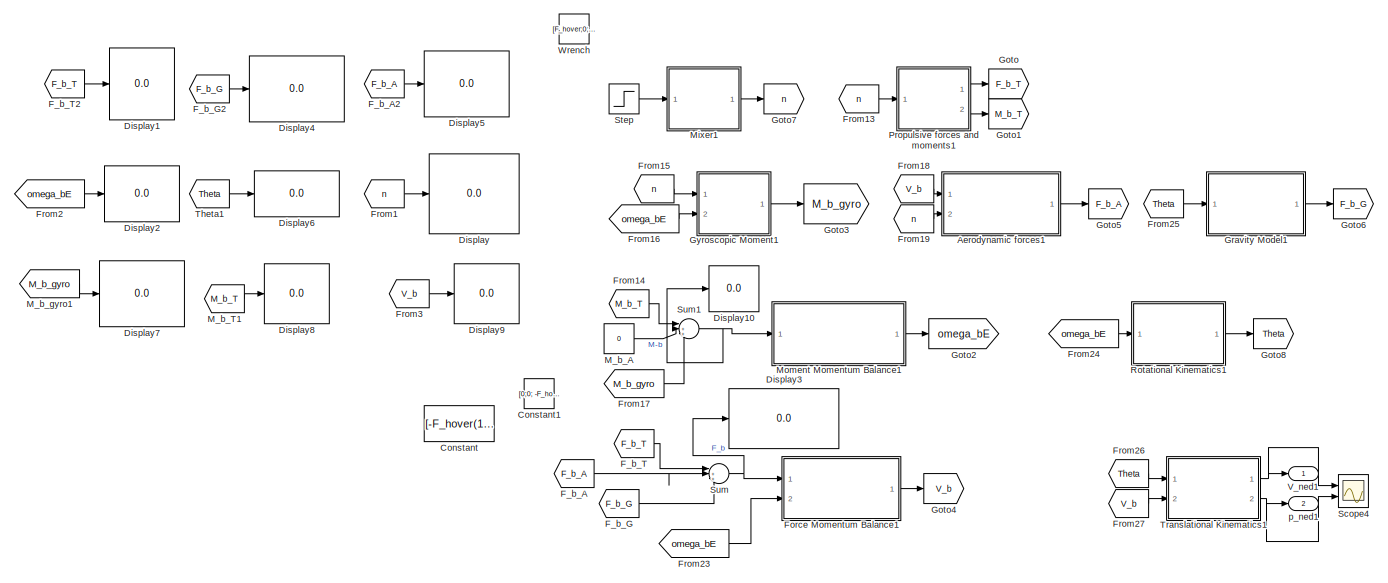
[diagram: root canvas - part 1/2, center side, full height]
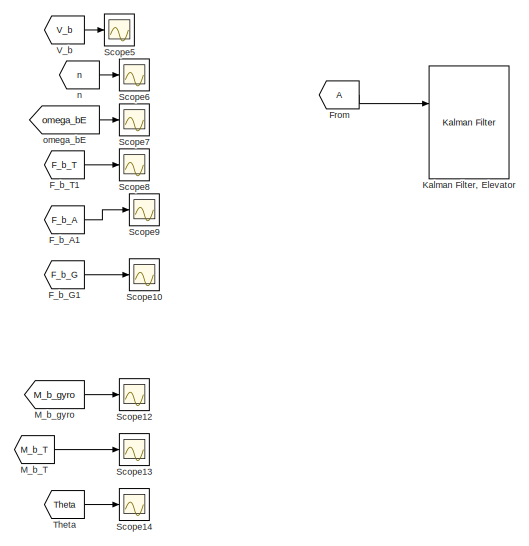
[diagram: root canvas - part 2/2, right side, full height]
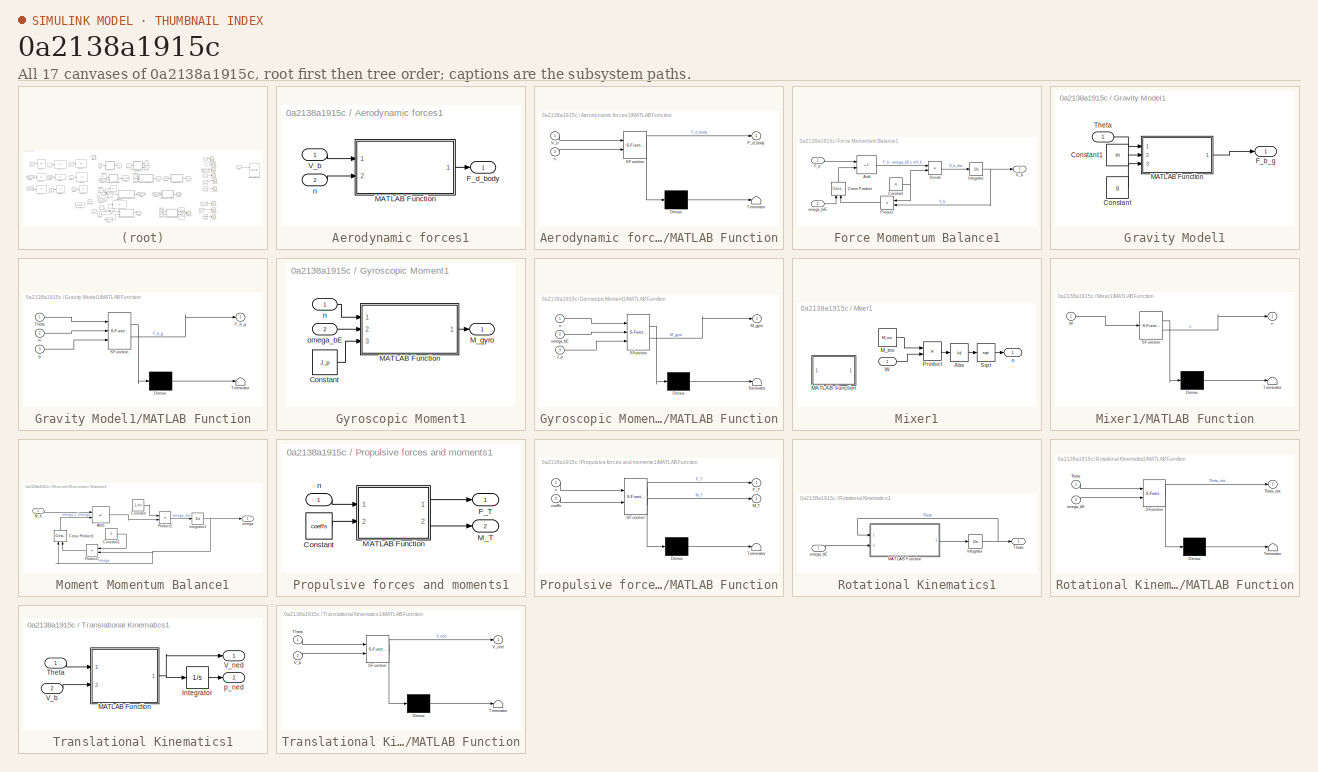
[diagram: thumbnail index - all 17 canvases of the model, root first then tree order]
MODEL slx_0a2138a1915c
KIND model
CONFIG AbsTol = auto
CONFIG EnableMultiTasking = off
CONFIG FixedStep = auto
CONFIG MaxStep = auto
CONFIG MinStep = auto
CONFIG RelTol = 1e-3
CONFIG SampleTimeConstraint = Unconstrained
CONFIG SolverName = VariableStepAuto
CONFIG StartTime = 0.0
CONFIG StopTime = 1
BLOCK [SubSystem] Aerodynamic forces1
  Ports = [2, 1]
  RequestExecContextInheritance = off
BLOCK [Outport] Aerodynamic forces1/F_d_body
BLOCK [SubSystem] Aerodynamic forces1/MATLAB Function
  ErrorFcn = Stateflow.Translate.translate
  PermitHierarchicalResolution = ExplicitOnly
  Ports = [2, 1]
  RequestExecContextInheritance = off
  SFBlockType = MATLAB Function
  TreatAsAtomicUnit = on
BLOCK [Demux] Aerodynamic forces1/MATLAB Function/ Demux 
  Outputs = 1
  Ports = [1, 1]
BLOCK [S-Function] Aerodynamic forces1/MATLAB Function/ SFunction 
  EnableBusSupport = on
  FunctionName = sf_sfun
  PortCounts = [2 2]
  Ports = [2, 2]
  SFcnIsStateOwnerBlock = off
  SFunctionDeploymentMode = off
  Tag = Stateflow S-Function 10
BLOCK [Terminator] Aerodynamic forces1/MATLAB Function/ Terminator 
BLOCK [Outport] Aerodynamic forces1/MATLAB Function/F_d_body
BLOCK [Inport] Aerodynamic forces1/MATLAB Function/V_b
BLOCK [Inport] Aerodynamic forces1/MATLAB Function/n
  Port = 2
BLOCK [Inport] Aerodynamic forces1/V_b
BLOCK [Inport] Aerodynamic forces1/n
  Port = 2
BLOCK [Constant] Constant
  Commented = on
  Value = [-F_hover(1)*sin(theta_hover(1)); 0; 0];
BLOCK [Constant] Constant1
  Commented = on
  Value = [0;0; -F_hover(1)*cos(theta_hover(1))]
BLOCK [Display] Display
  Decimation = 1
  Ports = [1]
BLOCK [Display] Display1
  Decimation = 1
  Ports = [1]
BLOCK [Display] Display10
  Decimation = 1
  Ports = [1]
BLOCK [Display] Display2
  Decimation = 1
  Ports = [1]
BLOCK [Display] Display3
  Decimation = 1
  Ports = [1]
BLOCK [Display] Display4
  Decimation = 1
  Ports = [1]
BLOCK [Display] Display5
  Decimation = 1
  Ports = [1]
BLOCK [Display] Display6
  Decimation = 1
  Ports = [1]
BLOCK [Display] Display7
  Decimation = 1
  Ports = [1]
BLOCK [Display] Display8
  Decimation = 1
  Ports = [1]
BLOCK [Display] Display9
  Decimation = 1
  Ports = [1]
BLOCK [From] F_b_A
  GotoTag = F_b_A
BLOCK [From] F_b_A1
  GotoTag = F_b_A
BLOCK [From] F_b_A2
  GotoTag = F_b_A
BLOCK [From] F_b_G
  GotoTag = F_b_G
BLOCK [From] F_b_G1
  GotoTag = F_b_G
BLOCK [From] F_b_G2
  GotoTag = F_b_G
BLOCK [From] F_b_T
  GotoTag = F_b_T
BLOCK [From] F_b_T1
  GotoTag = F_b_T
BLOCK [From] F_b_T2
  GotoTag = F_b_T
BLOCK [SubSystem] Force Momentum Balance1
  Ports = [2, 1]
  RequestExecContextInheritance = off
BLOCK [Sum] Force Momentum Balance1/Add
  IconShape = rectangular
  Inputs = +-
  Ports = [2, 1]
BLOCK [Constant] Force Momentum Balance1/Constant
  Value = m
BLOCK [Reference] Force Momentum Balance1/Cross Product  REF=vrlib/Utilities/Cross Product
  NameLocation = right
  Ports = [2, 1]
  SourceBlock = vrlib/Utilities/Cross Product
  SourceProductBaseCode = SL
  SourceType = Cross Product
BLOCK [Product] Force Momentum Balance1/Divide
  Inputs = */
  Ports = [2, 1]
BLOCK [Inport] Force Momentum Balance1/F_b
BLOCK [Integrator] Force Momentum Balance1/Integrator
  AttributesFormatString = %<InitialCondition>
  InitialCondition = V_b_0
  Ports = [1, 1]
BLOCK [Product] Force Momentum Balance1/Product
  NameLocation = top
  Ports = [2, 1]
BLOCK [Outport] Force Momentum Balance1/V_b
BLOCK [Inport] Force Momentum Balance1/omega_b//E
  Port = 2
BLOCK [From] From
BLOCK [From] From1
  GotoTag = n
BLOCK [From] From13
  GotoTag = n
BLOCK [From] From14
  GotoTag = M_b_T
BLOCK [From] From15
  GotoTag = n
BLOCK [From] From16
  GotoTag = omega_bE
BLOCK [From] From17
  GotoTag = M_b_gyro
BLOCK [From] From18
  GotoTag = V_b
BLOCK [From] From19
  GotoTag = n
BLOCK [From] From2
  GotoTag = omega_bE
BLOCK [From] From23
  GotoTag = omega_bE
BLOCK [From] From24
  GotoTag = omega_bE
BLOCK [From] From25
  GotoTag = Theta
BLOCK [From] From26
  GotoTag = Theta
BLOCK [From] From27
  GotoTag = V_b
BLOCK [From] From3
  GotoTag = V_b
BLOCK [Goto] Goto
  GotoTag = F_b_T
BLOCK [Goto] Goto1
  GotoTag = M_b_T
BLOCK [Goto] Goto2
  GotoTag = omega_bE
BLOCK [Goto] Goto3
  GotoTag = M_b_gyro
BLOCK [Goto] Goto4
  GotoTag = V_b
BLOCK [Goto] Goto5
  GotoTag = F_b_A
BLOCK [Goto] Goto6
  GotoTag = F_b_G
BLOCK [Goto] Goto7
  GotoTag = n
BLOCK [Goto] Goto8
  GotoTag = Theta
BLOCK [SubSystem] Gravity Model1
  Ports = [1, 1]
  RequestExecContextInheritance = off
BLOCK [Constant] Gravity Model1/Constant
  Value = g
BLOCK [Constant] Gravity Model1/Constant1
  Value = m
BLOCK [Outport] Gravity Model1/F_b_g
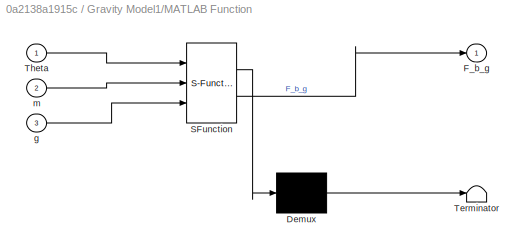
BLOCK [SubSystem] Gravity Model1/MATLAB Function
  ErrorFcn = Stateflow.Translate.translate
  PermitHierarchicalResolution = ExplicitOnly
  Ports = [3, 1]
  RequestExecContextInheritance = off
  SFBlockType = MATLAB Function
  TreatAsAtomicUnit = on
BLOCK [Demux] Gravity Model1/MATLAB Function/ Demux 
  Outputs = 1
  Ports = [1, 1]
BLOCK [S-Function] Gravity Model1/MATLAB Function/ SFunction 
  EnableBusSupport = on
  FunctionName = sf_sfun
  PortCounts = [3 2]
  Ports = [3, 2]
  SFcnIsStateOwnerBlock = off
  SFunctionDeploymentMode = off
  Tag = Stateflow S-Function 12
BLOCK [Terminator] Gravity Model1/MATLAB Function/ Terminator 
BLOCK [Outport] Gravity Model1/MATLAB Function/F_b_g
BLOCK [Inport] Gravity Model1/MATLAB Function/Theta
BLOCK [Inport] Gravity Model1/MATLAB Function/g
  Port = 3
BLOCK [Inport] Gravity Model1/MATLAB Function/m
  Port = 2
BLOCK [Inport] Gravity Model1/Theta
BLOCK [SubSystem] Gyroscopic Moment1
  Ports = [2, 1]
  RequestExecContextInheritance = off
BLOCK [Constant] Gyroscopic Moment1/Constant
  Value = J_p
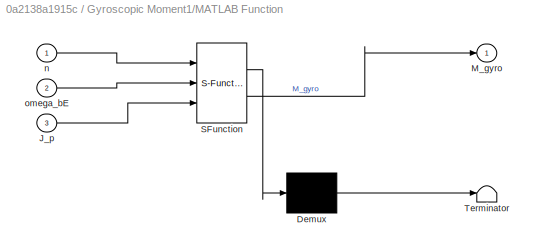
BLOCK [SubSystem] Gyroscopic Moment1/MATLAB Function
  ErrorFcn = Stateflow.Translate.translate
  PermitHierarchicalResolution = ExplicitOnly
  Ports = [3, 1]
  RequestExecContextInheritance = off
  SFBlockType = MATLAB Function
  TreatAsAtomicUnit = on
BLOCK [Demux] Gyroscopic Moment1/MATLAB Function/ Demux 
  Outputs = 1
  Ports = [1, 1]
BLOCK [S-Function] Gyroscopic Moment1/MATLAB Function/ SFunction 
  EnableBusSupport = on
  FunctionName = sf_sfun
  PortCounts = [3 2]
  Ports = [3, 2]
  SFcnIsStateOwnerBlock = off
  SFunctionDeploymentMode = off
  Tag = Stateflow S-Function 11
BLOCK [Terminator] Gyroscopic Moment1/MATLAB Function/ Terminator 
BLOCK [Inport] Gyroscopic Moment1/MATLAB Function/J_p
  Port = 3
BLOCK [Outport] Gyroscopic Moment1/MATLAB Function/M_gyro
BLOCK [Inport] Gyroscopic Moment1/MATLAB Function/n
BLOCK [Inport] Gyroscopic Moment1/MATLAB Function/omega_bE
  Port = 2
BLOCK [Outport] Gyroscopic Moment1/M_gyro
BLOCK [Inport] Gyroscopic Moment1/n
BLOCK [Inport] Gyroscopic Moment1/omega_bE
  Port = 2
BLOCK [Reference] Kalman Filter, Elevator  REF=ctrlSharedLib/Kalman Filter
  Ports = [2, 1]
  SourceBlock = ctrlSharedLib/Kalman Filter
  SourceProductBaseCode = CT,ID
  SourceType = ctrlKalmanFilter
BLOCK [Constant] M_b_A
  Value = 0
BLOCK [From] M_b_T
  GotoTag = M_b_T
BLOCK [From] M_b_T1
  GotoTag = M_b_T
BLOCK [From] M_b_gyro
  GotoTag = M_b_gyro
BLOCK [From] M_b_gyro1
  GotoTag = M_b_gyro
BLOCK [SubSystem] Mixer1
  Ports = [1, 1]
  RequestExecContextInheritance = off
BLOCK [Abs] Mixer1/Abs
  SaturateOnIntegerOverflow = off
BLOCK [SubSystem] Mixer1/MATLAB Function
  Commented = on
  ErrorFcn = Stateflow.Translate.translate
  PermitHierarchicalResolution = ExplicitOnly
  Ports = [1, 1]
  RequestExecContextInheritance = off
  SFBlockType = MATLAB Function
  TreatAsAtomicUnit = on
BLOCK [Demux] Mixer1/MATLAB Function/ Demux 
  Outputs = 1
  Ports = [1, 1]
BLOCK [S-Function] Mixer1/MATLAB Function/ SFunction 
  EnableBusSupport = on
  FunctionName = sf_sfun
  PortCounts = [1 2]
  Ports = [1, 2]
  SFcnIsStateOwnerBlock = off
  SFunctionDeploymentMode = off
  Tag = Stateflow S-Function 8
BLOCK [Terminator] Mixer1/MATLAB Function/ Terminator 
BLOCK [Inport] Mixer1/MATLAB Function/W
BLOCK [Outport] Mixer1/MATLAB Function/n
BLOCK [Constant] Mixer1/M_inv
  Value = M_inv
BLOCK [Product] Mixer1/Product
  Multiplication = Matrix(*)
  Ports = [2, 1]
BLOCK [Sqrt] Mixer1/Sqrt
BLOCK [Inport] Mixer1/W
BLOCK [Outport] Mixer1/n
BLOCK [SubSystem] Moment Momentum Balance1
  Ports = [1, 1]
  RequestExecContextInheritance = off
BLOCK [Sum] Moment Momentum Balance1/Add1
  IconShape = rectangular
  Inputs = +-
  Ports = [2, 1]
BLOCK [Constant] Moment Momentum Balance1/Constant
  Value = J_inv
BLOCK [Constant] Moment Momentum Balance1/Constant1
  Value = J
BLOCK [Reference] Moment Momentum Balance1/Cross Product1  REF=vrlib/Utilities/Cross Product
  NameLocation = right
  Ports = [2, 1]
  SourceBlock = vrlib/Utilities/Cross Product
  SourceProductBaseCode = SL
  SourceType = Cross Product
BLOCK [Integrator] Moment Momentum Balance1/Integrator1
  AttributesFormatString = %<InitialCondition>
  InitialCondition = omega_0
  Ports = [1, 1]
BLOCK [Inport] Moment Momentum Balance1/M_b
BLOCK [Product] Moment Momentum Balance1/Product1
  Multiplication = Matrix(*)
  NameLocation = top
  Ports = [2, 1]
BLOCK [Product] Moment Momentum Balance1/Product2
  Multiplication = Matrix(*)
  Ports = [2, 1]
BLOCK [Outport] Moment Momentum Balance1/omega
BLOCK [SubSystem] Propulsive forces and moments1
  Ports = [1, 2]
  RequestExecContextInheritance = off
BLOCK [Constant] Propulsive forces and moments1/Constant
  Value = coeffs
BLOCK [Outport] Propulsive forces and moments1/F_T
BLOCK [SubSystem] Propulsive forces and moments1/MATLAB Function
  ErrorFcn = Stateflow.Translate.translate
  PermitHierarchicalResolution = ExplicitOnly
  Ports = [2, 2]
  RequestExecContextInheritance = off
  SFBlockType = MATLAB Function
  TreatAsAtomicUnit = on
BLOCK [Demux] Propulsive forces and moments1/MATLAB Function/ Demux 
  Outputs = 1
  Ports = [1, 1]
BLOCK [S-Function] Propulsive forces and moments1/MATLAB Function/ SFunction 
  EnableBusSupport = on
  FunctionName = sf_sfun
  PortCounts = [2 3]
  Ports = [2, 3]
  SFcnIsStateOwnerBlock = off
  SFunctionDeploymentMode = off
  Tag = Stateflow S-Function 9
BLOCK [Terminator] Propulsive forces and moments1/MATLAB Function/ Terminator 
BLOCK [Outport] Propulsive forces and moments1/MATLAB Function/F_T
BLOCK [Outport] Propulsive forces and moments1/MATLAB Function/M_T
  Port = 2
BLOCK [Inport] Propulsive forces and moments1/MATLAB Function/coeffs
  Port = 2
BLOCK [Inport] Propulsive forces and moments1/MATLAB Function/n
BLOCK [Outport] Propulsive forces and moments1/M_T
  Port = 2
BLOCK [Inport] Propulsive forces and moments1/n
BLOCK [SubSystem] Rotational Kinematics1
  Ports = [1, 1]
  RequestExecContextInheritance = off
BLOCK [Integrator] Rotational Kinematics1/Integrator
  AttributesFormatString = %<InitialCondition>
  InitialCondition = Theta_0
  Ports = [1, 1]
BLOCK [SubSystem] Rotational Kinematics1/MATLAB Function
  ErrorFcn = Stateflow.Translate.translate
  PermitHierarchicalResolution = ExplicitOnly
  Ports = [2, 1]
  RequestExecContextInheritance = off
  SFBlockType = MATLAB Function
  TreatAsAtomicUnit = on
BLOCK [Demux] Rotational Kinematics1/MATLAB Function/ Demux 
  Outputs = 1
  Ports = [1, 1]
BLOCK [S-Function] Rotational Kinematics1/MATLAB Function/ SFunction 
  EnableBusSupport = on
  FunctionName = sf_sfun
  PortCounts = [2 2]
  Ports = [2, 2]
  SFcnIsStateOwnerBlock = off
  SFunctionDeploymentMode = off
  Tag = Stateflow S-Function 13
BLOCK [Terminator] Rotational Kinematics1/MATLAB Function/ Terminator 
BLOCK [Inport] Rotational Kinematics1/MATLAB Function/Theta
BLOCK [Outport] Rotational Kinematics1/MATLAB Function/Theta_dot
BLOCK [Inport] Rotational Kinematics1/MATLAB Function/omega_bE
  Port = 2
BLOCK [Outport] Rotational Kinematics1/Theta
BLOCK [Inport] Rotational Kinematics1/omega_bE
BLOCK [Scope] Scope10
  Floating = off
  NumInputPorts = 1
  Ports = [1]
  ScopeSpecificationString = Simulink.scopes.TimeScopeBlockCfg('CurrentConfiguration', extmgr.ConfigurationSet(extmgr.Configuration('Core','General UI',true),extmgr.Configuration('Core','Source UI',true),extmgr.Configuration('Sources','WiredSimulink',true,'DataLoggingVariableName','ScopeData10'),extmgr.Configuration('Visuals','Time Domain',true,'SerializedDisplays',{struct('MinYLimReal','-0.06461','MaxYLimReal','0.58146','YLa...<+1393ch>
BLOCK [Scope] Scope12
  Floating = off
  NumInputPorts = 1
  Ports = [1]
  ScopeSpecificationString = Simulink.scopes.TimeScopeBlockCfg('CurrentConfiguration', extmgr.ConfigurationSet(extmgr.Configuration('Core','General UI',true),extmgr.Configuration('Core','Source UI',true),extmgr.Configuration('Sources','WiredSimulink',true,'DataLoggingVariableName','ScopeData12'),extmgr.Configuration('Visuals','Time Domain',true,'SerializedDisplays',{struct('MinYLimReal','-1.00000','MaxYLimReal','1.00000','YLa...<+1396ch>
BLOCK [Scope] Scope13
  Floating = off
  NumInputPorts = 1
  Ports = [1]
  ScopeSpecificationString = Simulink.scopes.TimeScopeBlockCfg('CurrentConfiguration', extmgr.ConfigurationSet(extmgr.Configuration('Core','General UI',true),extmgr.Configuration('Core','Source UI',true),extmgr.Configuration('Sources','WiredSimulink',true,'DataLoggingVariableName','ScopeData13'),extmgr.Configuration('Visuals','Time Domain',true,'SerializedDisplays',{struct('MinYLimReal','-1.00000','MaxYLimReal','1.00000','YLa...<+1387ch>
BLOCK [Scope] Scope14
  Floating = off
  NumInputPorts = 1
  Ports = [1]
  ScopeSpecificationString = Simulink.scopes.TimeScopeBlockCfg('CurrentConfiguration', extmgr.ConfigurationSet(extmgr.Configuration('Core','General UI',true),extmgr.Configuration('Core','Source UI',true),extmgr.Configuration('Sources','WiredSimulink',true,'DataLoggingVariableName','ScopeData14'),extmgr.Configuration('Visuals','Time Domain',true,'SerializedDisplays',{struct('MinYLimReal','-0.76853','MaxYLimReal','0.08539','YLa...<+1393ch>
BLOCK [Scope] Scope4
  Floating = off
  NumInputPorts = 2
  Ports = [2]
  ScopeSpecificationString = Simulink.scopes.TimeScopeBlockCfg('CurrentConfiguration', extmgr.ConfigurationSet(extmgr.Configuration('Core','General UI',true),extmgr.Configuration('Core','Source UI',true),extmgr.Configuration('Sources','WiredSimulink',true,'DataLoggingVariableName','ScopeData4'),extmgr.Configuration('Visuals','Time Domain',true,'SerializedDisplays',{struct('MinYLimReal','-93.62369','MaxYLimReal','115.8444','YL...<+1566ch>
BLOCK [Scope] Scope5
  Floating = off
  NumInputPorts = 1
  Ports = [1]
  ScopeSpecificationString = Simulink.scopes.TimeScopeBlockCfg('CurrentConfiguration', extmgr.ConfigurationSet(extmgr.Configuration('Core','General UI',true),extmgr.Configuration('Core','Source UI',true),extmgr.Configuration('Sources','WiredSimulink',true,'DataLoggingVariableName','ScopeData5'),extmgr.Configuration('Visuals','Time Domain',true,'SerializedDisplays',{struct('MinYLimReal','-1.05831','MaxYLimReal','1.20398','YLab...<+1386ch>
BLOCK [Scope] Scope6
  Floating = off
  NumInputPorts = 1
  Ports = [1]
  ScopeSpecificationString = Simulink.scopes.TimeScopeBlockCfg('CurrentConfiguration', extmgr.ConfigurationSet(extmgr.Configuration('Core','General UI',true),extmgr.Configuration('Core','Source UI',true),extmgr.Configuration('Sources','WiredSimulink',true,'DataLoggingVariableName','ScopeData6'),extmgr.Configuration('Visuals','Time Domain',true,'SerializedDisplays',{struct('MinYLimReal','44.55172','MaxYLimReal','461.24553','YL...<+1410ch>
BLOCK [Scope] Scope7
  Floating = off
  NumInputPorts = 1
  Ports = [1]
  ScopeSpecificationString = Simulink.scopes.TimeScopeBlockCfg('CurrentConfiguration', extmgr.ConfigurationSet(extmgr.Configuration('Core','General UI',true),extmgr.Configuration('Core','Source UI',true),extmgr.Configuration('Sources','WiredSimulink',true,'DataLoggingVariableName','ScopeData7'),extmgr.Configuration('Visuals','Time Domain',true,'SerializedDisplays',{struct('MinYLimReal','-1.00000','MaxYLimReal','1.00000','YLab...<+1392ch>
BLOCK [Scope] Scope8
  Floating = off
  NumInputPorts = 1
  Ports = [1]
  ScopeSpecificationString = Simulink.scopes.TimeScopeBlockCfg('CurrentConfiguration', extmgr.ConfigurationSet(extmgr.Configuration('Core','General UI',true),extmgr.Configuration('Core','Source UI',true),extmgr.Configuration('Sources','WiredSimulink',true,'DataLoggingVariableName','ScopeData8'),extmgr.Configuration('Visuals','Time Domain',true,'SerializedDisplays',{struct('MinYLimReal','-0.7497','MaxYLimReal','0.0833','YLabel...<+1380ch>
BLOCK [Scope] Scope9
  Floating = off
  NumInputPorts = 1
  Ports = [1]
  ScopeSpecificationString = Simulink.scopes.TimeScopeBlockCfg('CurrentConfiguration', extmgr.ConfigurationSet(extmgr.Configuration('Core','General UI',true),extmgr.Configuration('Core','Source UI',true),extmgr.Configuration('Sources','WiredSimulink',true,'DataLoggingVariableName','ScopeData9'),extmgr.Configuration('Visuals','Time Domain',true,'SerializedDisplays',{struct('MinYLimReal','-0.47323','MaxYLimReal','0.05258','YLab...<+1401ch>
BLOCK [Step] Step
  After = Wrench_step
  Before = Wrench_0
  SampleTime = 0
  Time = 0.4
BLOCK [Sum] Sum
  Inputs = |+++
  Ports = [3, 1]
BLOCK [Sum] Sum1
  Inputs = |+++
  Ports = [3, 1]
BLOCK [From] Theta
  GotoTag = Theta
BLOCK [From] Theta1
  GotoTag = Theta
BLOCK [SubSystem] Translational Kinematics1
  Ports = [2, 2]
  RequestExecContextInheritance = off
BLOCK [Integrator] Translational Kinematics1/Integrator
  AttributesFormatString = %<InitialCondition>
  InitialCondition = p_ned_0
  Ports = [1, 1]
BLOCK [SubSystem] Translational Kinematics1/MATLAB Function
  ErrorFcn = Stateflow.Translate.translate
  PermitHierarchicalResolution = ExplicitOnly
  Ports = [2, 1]
  RequestExecContextInheritance = off
  SFBlockType = MATLAB Function
  TreatAsAtomicUnit = on
BLOCK [Demux] Translational Kinematics1/MATLAB Function/ Demux 
  Outputs = 1
  Ports = [1, 1]
BLOCK [S-Function] Translational Kinematics1/MATLAB Function/ SFunction 
  EnableBusSupport = on
  FunctionName = sf_sfun
  PortCounts = [2 2]
  Ports = [2, 2]
  SFcnIsStateOwnerBlock = off
  SFunctionDeploymentMode = off
  Tag = Stateflow S-Function 14
BLOCK [Terminator] Translational Kinematics1/MATLAB Function/ Terminator 
BLOCK [Inport] Translational Kinematics1/MATLAB Function/Theta
BLOCK [Inport] Translational Kinematics1/MATLAB Function/V_b
  Port = 2
BLOCK [Outport] Translational Kinematics1/MATLAB Function/V_ned
BLOCK [Inport] Translational Kinematics1/Theta
BLOCK [Inport] Translational Kinematics1/V_b
  Port = 2
BLOCK [Outport] Translational Kinematics1/V_ned
BLOCK [Outport] Translational Kinematics1/p_ned
  Port = 2
BLOCK [From] V_b
  GotoTag = V_b
BLOCK [Outport] V_ned1
BLOCK [Constant] Wrench
  Commented = on
  Value = [F_hover;0;0;0]
BLOCK [From] n
  GotoTag = n
BLOCK [From] omega_bE
  GotoTag = omega_bE
BLOCK [Outport] p_ned1
  Port = 2
LINE Aerodynamic forces1/MATLAB Function:1 -> Aerodynamic forces1/F_d_body:1
LINE Aerodynamic forces1/V_b:1 -> Aerodynamic forces1/MATLAB Function:1
LINE Aerodynamic forces1/n:1 -> Aerodynamic forces1/MATLAB Function:2
LINE Aerodynamic forces1:1 -> Goto5:1
LINE F_b_A1:1 -> Scope9:1
LINE F_b_A2:1 -> Display5:1
LINE F_b_A:1 -> Sum:2
LINE F_b_G1:1 -> Scope10:1
LINE F_b_G2:1 -> Display4:1
LINE F_b_G:1 -> Sum:3
LINE F_b_T1:1 -> Scope8:1
LINE F_b_T2:1 -> Display1:1
LINE F_b_T:1 -> Sum:1
LINE Force Momentum Balance1/Add:1 -> Force Momentum Balance1/Divide:1
NET Force Momentum Balance1/Constant:1 -> Force Momentum Balance1/Divide:2, Force Momentum Balance1/Product:1
LINE Force Momentum Balance1/Cross Product:1 -> Force Momentum Balance1/Add:2
LINE Force Momentum Balance1/Divide:1 -> Force Momentum Balance1/Integrator:1
LINE Force Momentum Balance1/F_b:1 -> Force Momentum Balance1/Add:1
NET Force Momentum Balance1/Integrator:1 -> Force Momentum Balance1/Product:2, Force Momentum Balance1/V_b:1
LINE Force Momentum Balance1/Product:1 -> Force Momentum Balance1/Cross Product:2
LINE Force Momentum Balance1/omega_b//E:1 -> Force Momentum Balance1/Cross Product:1
LINE Force Momentum Balance1:1 -> Goto4:1
LINE From13:1 -> Propulsive forces and moments1:1
LINE From14:1 -> Sum1:1
LINE From15:1 -> Gyroscopic Moment1:1
LINE From16:1 -> Gyroscopic Moment1:2
LINE From17:1 -> Sum1:3
LINE From18:1 -> Aerodynamic forces1:1
LINE From19:1 -> Aerodynamic forces1:2
LINE From1:1 -> Display:1
LINE From23:1 -> Force Momentum Balance1:2
LINE From24:1 -> Rotational Kinematics1:1
LINE From25:1 -> Gravity Model1:1
LINE From26:1 -> Translational Kinematics1:1
LINE From27:1 -> Translational Kinematics1:2
LINE From2:1 -> Display2:1
LINE From3:1 -> Display9:1
LINE From:1 -> Kalman Filter, Elevator:1
LINE Gravity Model1/Constant1:1 -> Gravity Model1/MATLAB Function:2
LINE Gravity Model1/Constant:1 -> Gravity Model1/MATLAB Function:3
LINE Gravity Model1/MATLAB Function:1 -> Gravity Model1/F_b_g:1
LINE Gravity Model1/Theta:1 -> Gravity Model1/MATLAB Function:1
LINE Gravity Model1:1 -> Goto6:1
LINE Gyroscopic Moment1/Constant:1 -> Gyroscopic Moment1/MATLAB Function:3
LINE Gyroscopic Moment1/MATLAB Function:1 -> Gyroscopic Moment1/M_gyro:1
LINE Gyroscopic Moment1/n:1 -> Gyroscopic Moment1/MATLAB Function:1
LINE Gyroscopic Moment1/omega_bE:1 -> Gyroscopic Moment1/MATLAB Function:2
LINE Gyroscopic Moment1:1 -> Goto3:1
LINE M_b_A:1 -> Sum1:2
LINE M_b_T1:1 -> Display8:1
LINE M_b_T:1 -> Scope13:1
LINE M_b_gyro1:1 -> Display7:1
LINE M_b_gyro:1 -> Scope12:1
LINE Mixer1/Abs:1 -> Mixer1/Sqrt:1
LINE Mixer1/M_inv:1 -> Mixer1/Product:1
LINE Mixer1/Product:1 -> Mixer1/Abs:1
LINE Mixer1/Sqrt:1 -> Mixer1/n:1
LINE Mixer1/W:1 -> Mixer1/Product:2
LINE Mixer1:1 -> Goto7:1
LINE Moment Momentum Balance1/Add1:1 -> Moment Momentum Balance1/Product2:2
LINE Moment Momentum Balance1/Constant1:1 -> Moment Momentum Balance1/Product1:1
LINE Moment Momentum Balance1/Constant:1 -> Moment Momentum Balance1/Product2:1
LINE Moment Momentum Balance1/Cross Product1:1 -> Moment Momentum Balance1/Add1:2
NET Moment Momentum Balance1/Integrator1:1 -> Moment Momentum Balance1/Cross Product1:1, Moment Momentum Balance1/Product1:2, Moment Momentum Balance1/omega:1
LINE Moment Momentum Balance1/M_b:1 -> Moment Momentum Balance1/Add1:1
LINE Moment Momentum Balance1/Product1:1 -> Moment Momentum Balance1/Cross Product1:2
LINE Moment Momentum Balance1/Product2:1 -> Moment Momentum Balance1/Integrator1:1
LINE Moment Momentum Balance1:1 -> Goto2:1
LINE Propulsive forces and moments1/Constant:1 -> Propulsive forces and moments1/MATLAB Function:2
LINE Propulsive forces and moments1/MATLAB Function:1 -> Propulsive forces and moments1/F_T:1
LINE Propulsive forces and moments1/MATLAB Function:2 -> Propulsive forces and moments1/M_T:1
LINE Propulsive forces and moments1/n:1 -> Propulsive forces and moments1/MATLAB Function:1
LINE Propulsive forces and moments1:1 -> Goto:1
LINE Propulsive forces and moments1:2 -> Goto1:1
NET Rotational Kinematics1/Integrator:1 -> Rotational Kinematics1/MATLAB Function:1, Rotational Kinematics1/Theta:1
LINE Rotational Kinematics1/MATLAB Function:1 -> Rotational Kinematics1/Integrator:1
LINE Rotational Kinematics1/omega_bE:1 -> Rotational Kinematics1/MATLAB Function:2
LINE Rotational Kinematics1:1 -> Goto8:1
LINE Step:1 -> Mixer1:1
NET Sum1:1 -> Display10:1, Moment Momentum Balance1:1
NET Sum:1 -> Display3:1, Force Momentum Balance1:1
LINE Theta1:1 -> Display6:1
LINE Theta:1 -> Scope14:1
LINE Translational Kinematics1/Integrator:1 -> Translational Kinematics1/p_ned:1
NET Translational Kinematics1/MATLAB Function:1 -> Translational Kinematics1/Integrator:1, Translational Kinematics1/V_ned:1
LINE Translational Kinematics1/Theta:1 -> Translational Kinematics1/MATLAB Function:1
LINE Translational Kinematics1/V_b:1 -> Translational Kinematics1/MATLAB Function:2
NET Translational Kinematics1:1 -> Scope4:1, V_ned1:1
NET Translational Kinematics1:2 -> Scope4:2, p_ned1:1
LINE V_b:1 -> Scope5:1
LINE n:1 -> Scope6:1
LINE omega_bE:1 -> Scope7:1
note: NET lines group one-source signal fan-out (src -> all destinations, sorted); 1:1 wires keep LINE
CHART Propulsive forces and moments1/MATLAB Function states=1 transitions=1
  STATE_LABEL 'eML_blk_kernel()'
  STATE_LABEL 'SCRIPT:\nfunction [F_T,M_T]= fcn(n,coeffs)\na = coeffs(1);\nb = coeffs(2);\nc = coeffs(3);\nd = coeffs(4);\nF_T = [0;0; -a*(n(1)^2 + n(2)^2 + n(3)^2 + n(4)^2)];\nM_T = [b*(n(1)^2 - n(2)^2 - n(3)^2 + n(4)^2); c*(n(1)^2 + n(2)^2 - n(3)^2 - n(4)^2); d*(-n(1)^2 + n(2)^2 - n(3)^2 + n(4)^2)];\n'
CHART Aerodynamic forces1/MATLAB Function states=1 transitions=1
  STATE_LABEL 'eML_blk_kernel()'
  STATE_LABEL 'SCRIPT:\nfunction F_d_body = fcn(V_b,n)\nrho = 1.293;\nD = 0.066;\nC_t = @(n) 4.375*10^(-5)*n + 0.0704;\nK_c = 0.22;\nK = [K_c 0 0;\n     0 K_c 0;\n     0 0 0];\nF_d_body = -rho*C_t(abs(n(2)))*D^4*(n(1)^2 + n(2)^2 + n(3)^2 + n(4)^2)*K*V_b;\n'
CHART Gyroscopic Moment1/MATLAB Function states=1 transitions=1
  STATE_LABEL 'eML_blk_kernel()'
  STATE_LABEL 'SCRIPT:\nfunction M_gyro = fcn(n,omega_bE,J_p)\n    H = [0;0; J_p*2*pi*(n(1)-n(2)+n(3)-n(4))];\nM_gyro = cross(omega_bE,H);\n'
CHART Gravity Model1/MATLAB Function states=1 transitions=1
  STATE_LABEL 'eML_blk_kernel()'
  STATE_LABEL 'SCRIPT:\nfunction F_b_g = fcn(Theta,m,g)\nphi = Theta(1);\ntheta = Theta(2);\npsi = Theta(3);\nR_phi = [1 0 0;\n         0 cos(phi) sin(phi);\n         0 -sin(phi) cos(phi)];\nR_theta = [cos(theta) 0 -sin(theta);\n           0 1 0;\n           sin(theta) 0 cos(theta)];\nR_psi = [cos(psi) sin(psi) 0;\n         -sin(psi) cos(psi) 0;\n         0 0 1];\nR_b_E = R_phi*R_theta*R_psi;\nF_b_g = R_b_E*[0; 0; m*g];\n'
CHART Rotational Kinematics1/MATLAB Function states=1 transitions=1
  STATE_LABEL 'eML_blk_kernel()'
  STATE_LABEL 'SCRIPT:\nfunction Theta_dot = fcn(Theta,omega_bE)\n    phi = Theta(1);\n    theta = Theta(2);\n    H_inv = [1 sin(phi)*tan(theta) cos(phi)*tan(theta);\n             0 cos(phi) -sin(phi);\n             0 sin(phi)*sec(theta) cos(phi)*sec(theta)];\nTheta_dot = H_inv*omega_bE;\n'
CHART Translational Kinematics1/MATLAB Function states=1 transitions=1
  STATE_LABEL 'eML_blk_kernel()'
  STATE_LABEL 'SCRIPT:\nfunction V_ned = fcn(Theta,V_b)\nphi = Theta(1);\ntheta = Theta(2);\npsi = Theta(3);\nR_phi = [1 0 0;\n         0 cos(phi) sin(phi);\n         0 -sin(phi) cos(phi)];\nR_theta = [cos(theta) 0 -sin(theta);\n           0 1 0;\n           sin(theta) 0 cos(theta)];\nR_psi = [cos(psi) sin(psi) 0;\n         -sin(psi) cos(psi) 0;\n         0 0 1];\nR = R_phi*R_theta*R_psi;\n% R = [cos(psi)*cos(theta) cos(theta)...<+282ch>'
CHART Mixer1/MATLAB Function states=1 transitions=1
  STATE_LABEL 'eML_blk_kernel()'
  STATE_LABEL 'SCRIPT:\nfunction n = getMotorSpeeds(W)\n% a = 2.034763500512882e-06;\n% b = 9.690561171192599e-08;\n% c = b;\n% d = 1.056628184682481e-08;\nrho = 1.293;\nD = 0.066;\nC_t = @(n) 4.375*10^(-5)*n + 0.0704; \nC_p = 0.041;\ndist_xy = 0.047625; \nn_eq = 2.893014369037372e+02;\na = C_t(n_eq)*rho*D^4;\nb = C_t(n_eq)*rho*D^4*dist_xy;\nc = b;\nd = C_p*rho*D^5/(2*pi);\nM = [a a a a;\n    b -b -b b;\n    c c -c -c;\n    -d d -...<+37ch>'
CHART  states=0 transitions=0
CHART  states=0 transitions=0
CHART  states=0 transitions=0
CHART  states=0 transitions=0
CHART  states=0 transitions=0
CHART  states=0 transitions=0
CHART  states=0 transitions=0
